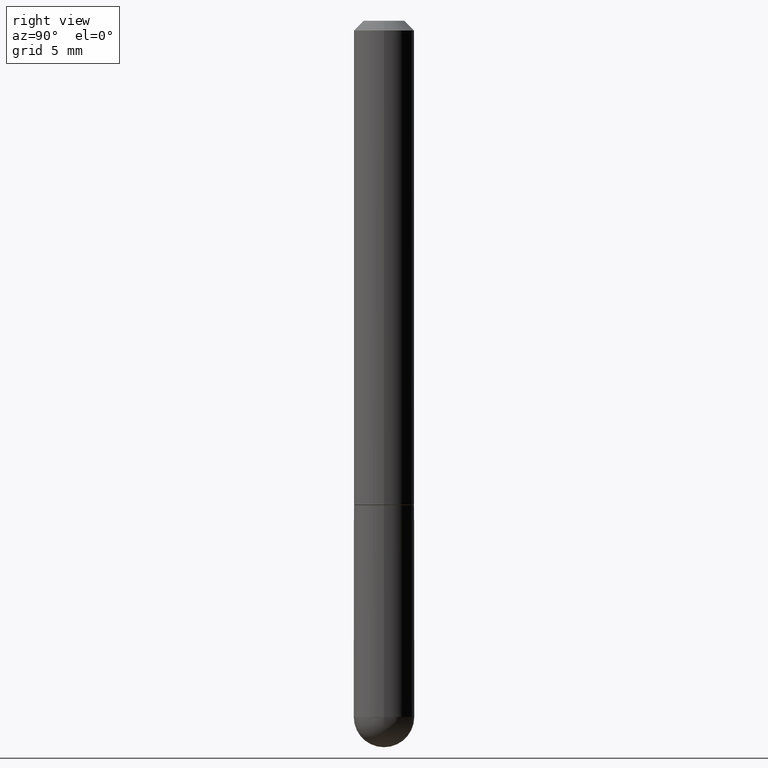
[diagram: clean part render]
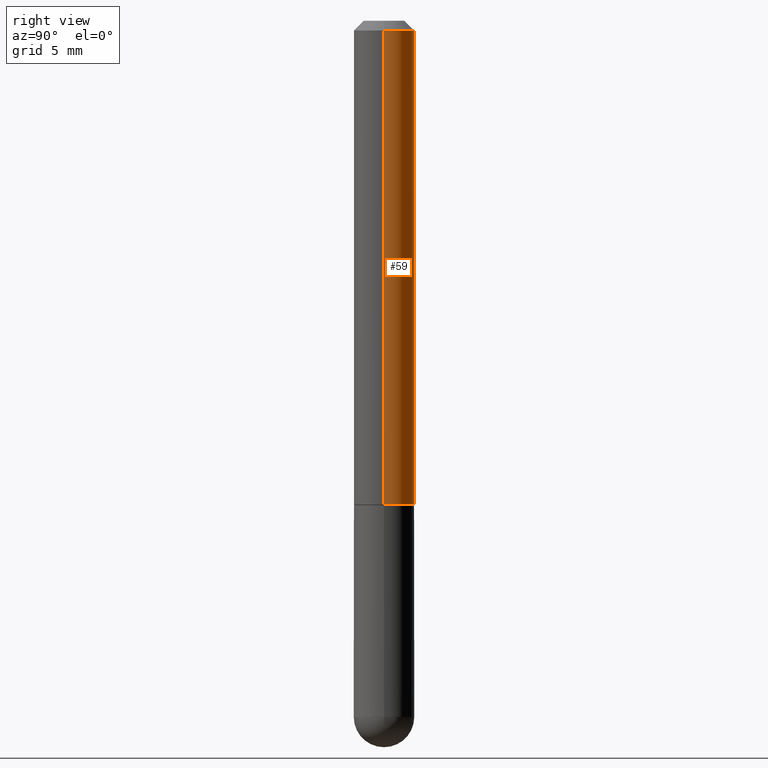
[diagram: same view with one face highlighted and labeled with its STEP entity id]
A machine part, right view. The second image highlights one B-rep face of the part: STEP entity #59.
In plain terms, the highlighted cylindrical surface (edge-blend (fillet) strip) has radius 1.5875 mm, axis along (-0, 0, 1).
Its self-contained STEP definition (entity closure, byte-faithful):
#10 = CARTESIAN_POINT ( 'NONE',  ( 0.000000000000000000, 0.000000000000000000, 0.000000000000000000 ) ) ;
#19 = CARTESIAN_POINT ( 'NONE',  ( -0.06249999999999995143, 3.666055405785281740E-16, -0.02000000000000006981 ) ) ;
#24 = DIRECTION ( 'NONE',  ( -2.445468806185136597E-29, 3.491481338843145583E-15, 1.000000000000000000 ) ) ;
#36 = CIRCLE ( 'NONE', #333, 0.06250000000000013878 ) ;
#44 = ORIENTED_EDGE ( 'NONE', *, *, #144, .F. ) ;
#55 = EDGE_CURVE ( 'NONE', #354, #107, #306, .T. ) ;
#59 = ADVANCED_FACE ( 'NONE', ( #213 ), #207, .T. ) ;
#80 = CARTESIAN_POINT ( 'NONE',  ( -0.06250000000000004163, 4.440892098500629120E-16, -3.074334431409318216E-30 ) ) ;
#88 = CARTESIAN_POINT ( 'NONE',  ( 0.06249999999999995143, -4.986107516375835278E-16, -0.02000000000000006981 ) ) ;
#89 = DIRECTION ( 'NONE',  ( 1.000000000000000000, -6.982962677686270655E-15, 0.000000000000000000 ) ) ;
#104 = VERTEX_POINT ( 'NONE', #88 ) ;
#107 = VERTEX_POINT ( 'NONE', #19 ) ;
#110 = DIRECTION ( 'NONE',  ( -2.445468806185136877E-29, 3.491481338843145188E-15, 1.000000000000000000 ) ) ;
#116 = AXIS2_PLACEMENT_3D ( 'NONE', #10, #390, #329 ) ;
#118 = CIRCLE ( 'NONE', #348, 0.06249999999999995143 ) ;
#134 = EDGE_CURVE ( 'NONE', #104, #107, #118, .T. ) ;
#141 = VERTEX_POINT ( 'NONE', #191 ) ;
#144 = EDGE_CURVE ( 'NONE', #141, #104, #156, .T. ) ;
#156 = LINE ( 'NONE', #400, #172 ) ;
#172 = VECTOR ( 'NONE', #256, 39.37007874015748143 ) ;
#189 = DIRECTION ( 'NONE',  ( -2.445468806185136597E-29, 3.491481338843145583E-15, 1.000000000000000000 ) ) ;
#191 = CARTESIAN_POINT ( 'NONE',  ( 0.06250000000000013878, -3.924425024859695428E-15, -0.9990000000000002212 ) ) ;
#207 = CYLINDRICAL_SURFACE ( 'NONE', #116, 0.06250000000000004163 ) ;
#213 = FACE_OUTER_BOUND ( 'NONE', #323, .T. ) ;
#228 = ORIENTED_EDGE ( 'NONE', *, *, #242, .T. ) ;
#234 = ORIENTED_EDGE ( 'NONE', *, *, #55, .T. ) ;
#242 = EDGE_CURVE ( 'NONE', #141, #354, #36, .T. ) ;
#252 = ORIENTED_EDGE ( 'NONE', *, *, #134, .F. ) ;
#256 = DIRECTION ( 'NONE',  ( -2.445468806185136877E-29, 3.491481338843145188E-15, 1.000000000000000000 ) ) ;
#288 = CARTESIAN_POINT ( 'NONE',  ( -0.06250000000000013878, -1.334820532290516771E-15, -0.9990000000000002212 ) ) ;
#291 = VECTOR ( 'NONE', #110, 39.37007874015748143 ) ;
#306 = LINE ( 'NONE', #80, #291 ) ;
#314 = DIRECTION ( 'NONE',  ( 1.000000000000000000, -6.982962677686266711E-15, 0.000000000000000000 ) ) ;
#323 = EDGE_LOOP ( 'NONE', ( #228, #234, #252, #44 ) ) ;
#329 = DIRECTION ( 'NONE',  ( 1.000000000000000000, -6.982962677686266711E-15, 4.876176775795935793E-29 ) ) ;
#333 = AXIS2_PLACEMENT_3D ( 'NONE', #407, #189, #89 ) ;
#342 = CARTESIAN_POINT ( 'NONE',  ( 4.890937612370289799E-31, -6.982962677686315028E-17, -0.02000000000000006981 ) ) ;
#348 = AXIS2_PLACEMENT_3D ( 'NONE', #342, #24, #314 ) ;
#354 = VERTEX_POINT ( 'NONE', #288 ) ;
#390 = DIRECTION ( 'NONE',  ( -2.445468806185136597E-29, 3.491481338843145583E-15, 1.000000000000000000 ) ) ;
#400 = CARTESIAN_POINT ( 'NONE',  ( 0.06250000000000004163, -4.364351673553919652E-16, 3.047610484872461972E-30 ) ) ;
#407 = CARTESIAN_POINT ( 'NONE',  ( 2.443023337378951835E-29, -3.487989857504302970E-15, -0.9990000000000002212 ) ) ;